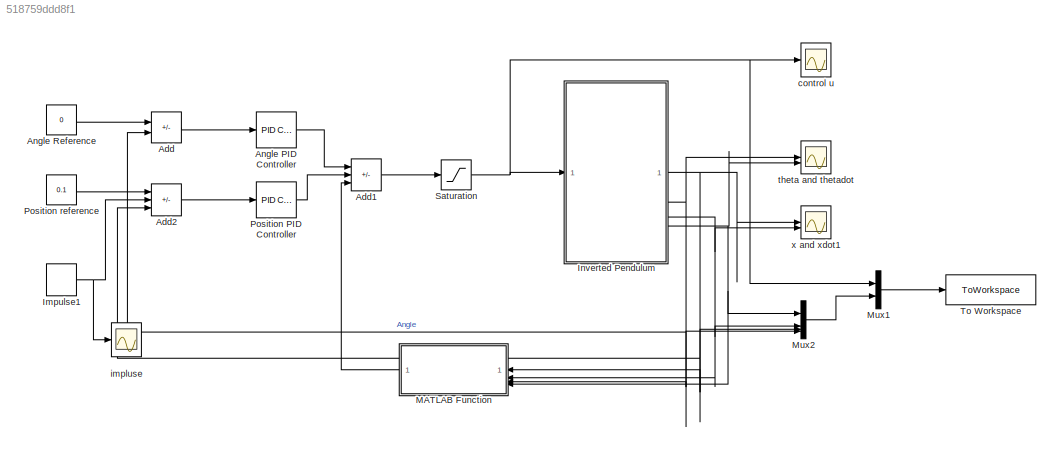
MODEL slx_518759ddd8f1
KIND model
CONFIG AbsTol = auto
CONFIG EnableMultiTasking = off
CONFIG FixedStep = auto
CONFIG MaxStep = auto
CONFIG MinStep = auto
CONFIG RelTol = 1e-3
CONFIG SampleTimeConstraint = Unconstrained
CONFIG SolverName = VariableStepAuto
CONFIG StartTime = 0.0
CONFIG StopTime = 50
BLOCK [Sum] Add
  IconShape = rectangular
  Inputs = +-
BLOCK [Sum] Add1
  IconShape = rectangular
  Inputs = ++-
BLOCK [Sum] Add2
  IconShape = rectangular
  Inputs = ++-
BLOCK [Reference] Angle PID Controller  REF=slpidlib/PID Controller
  SourceBlock = slpidlib/PID Controller
  SourceType = PID 1dof
BLOCK [Constant] Angle Reference
  Value = 0
BLOCK [DiscretePulseGenerator] Impulse1
  Amplitude = 1000
  Period = 10
  PulseType = Time based
  PulseWidth = 0.01
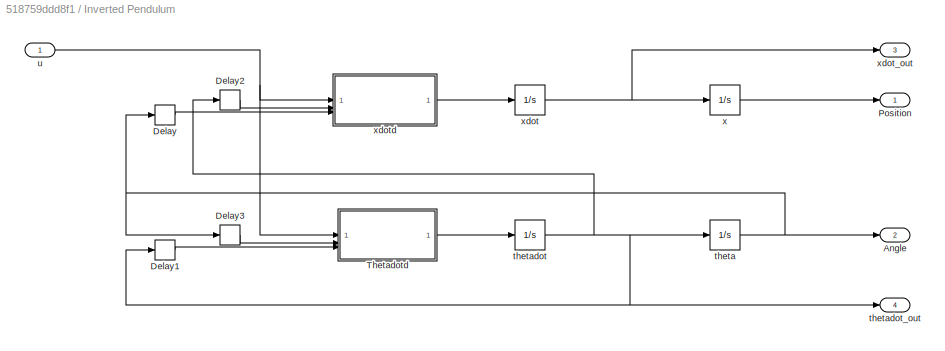
BLOCK [SubSystem] Inverted Pendulum
BLOCK [Outport] Inverted Pendulum/Angle
  Port = 2
BLOCK [Delay] Inverted Pendulum/Delay
  DelayLength = 1
  InitialCondition = 0
  InputPortMap = u0
BLOCK [Delay] Inverted Pendulum/Delay1
  DelayLength = 1
  InitialCondition = 0
  InputPortMap = u0
BLOCK [Delay] Inverted Pendulum/Delay2
  DelayLength = 1
  InitialCondition = 0
  InputPortMap = u0
BLOCK [Delay] Inverted Pendulum/Delay3
  DelayLength = 1
  InitialCondition = 0
  InputPortMap = u0
BLOCK [Outport] Inverted Pendulum/Position
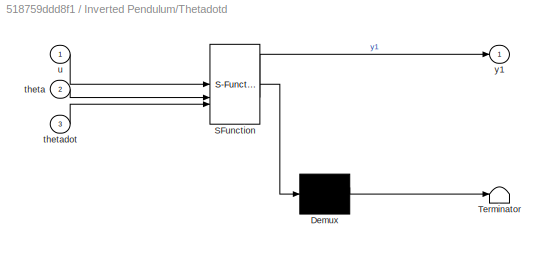
BLOCK [SubSystem] Inverted Pendulum/Thetadotd
  ErrorFcn = Stateflow.Translate.translate
  PermitHierarchicalResolution = ExplicitOnly
  SFBlockType = MATLAB Function
  TreatAsAtomicUnit = on
BLOCK [Demux] Inverted Pendulum/Thetadotd/ Demux 
  Outputs = 1
BLOCK [S-Function] Inverted Pendulum/Thetadotd/ SFunction 
  EnableBusSupport = on
  FunctionName = sf_sfun
  PortCounts = [3 2]
  SFcnIsStateOwnerBlock = off
  SFunctionDeploymentMode = off
  Tag = Stateflow S-Function 3
BLOCK [Terminator] Inverted Pendulum/Thetadotd/ Terminator 
BLOCK [Inport] Inverted Pendulum/Thetadotd/theta
  Port = 2
BLOCK [Inport] Inverted Pendulum/Thetadotd/thetadot
  Port = 3
BLOCK [Inport] Inverted Pendulum/Thetadotd/u
BLOCK [Outport] Inverted Pendulum/Thetadotd/y1
BLOCK [Integrator] Inverted Pendulum/theta
  ContinuousStateAttributes = 'theta'
BLOCK [Integrator] Inverted Pendulum/thetadot
  ContinuousStateAttributes = 'thetadot'
BLOCK [Outport] Inverted Pendulum/thetadot_out
  Port = 4
BLOCK [Inport] Inverted Pendulum/u
BLOCK [Integrator] Inverted Pendulum/x
  ContinuousStateAttributes = 'x'
BLOCK [Integrator] Inverted Pendulum/xdot
  ContinuousStateAttributes = 'xdot'
BLOCK [Outport] Inverted Pendulum/xdot_out
  Port = 3
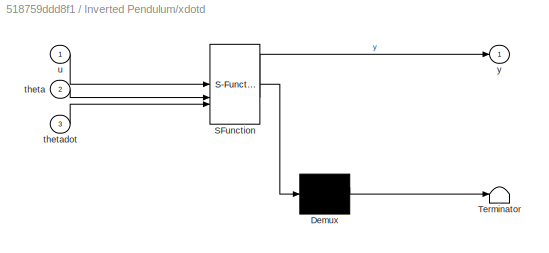
BLOCK [SubSystem] Inverted Pendulum/xdotd
  ErrorFcn = Stateflow.Translate.translate
  PermitHierarchicalResolution = ExplicitOnly
  SFBlockType = MATLAB Function
  TreatAsAtomicUnit = on
BLOCK [Demux] Inverted Pendulum/xdotd/ Demux 
  Outputs = 1
BLOCK [S-Function] Inverted Pendulum/xdotd/ SFunction 
  EnableBusSupport = on
  FunctionName = sf_sfun
  PortCounts = [3 2]
  SFcnIsStateOwnerBlock = off
  SFunctionDeploymentMode = off
  Tag = Stateflow S-Function 2
BLOCK [Terminator] Inverted Pendulum/xdotd/ Terminator 
BLOCK [Inport] Inverted Pendulum/xdotd/theta
  Port = 2
BLOCK [Inport] Inverted Pendulum/xdotd/thetadot
  Port = 3
BLOCK [Inport] Inverted Pendulum/xdotd/u
BLOCK [Outport] Inverted Pendulum/xdotd/y
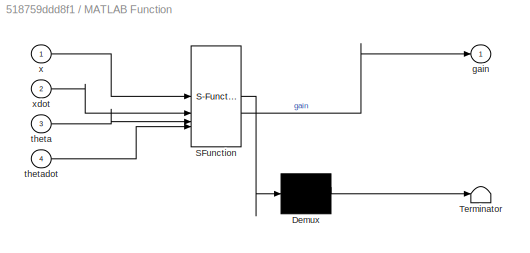
BLOCK [SubSystem] MATLAB Function
  ErrorFcn = Stateflow.Translate.translate
  LibrarySourceBlock = simulink/User-Defined\nFunctions/MATLAB Function
  PermitHierarchicalResolution = ExplicitOnly
  SFBlockType = MATLAB Function
  TreatAsAtomicUnit = on
BLOCK [Demux] MATLAB Function/ Demux 
  Outputs = 1
BLOCK [S-Function] MATLAB Function/ SFunction 
  EnableBusSupport = on
  FunctionName = sf_sfun
  PortCounts = [4 2]
  SFcnIsStateOwnerBlock = off
  SFunctionDeploymentMode = off
  Tag = Stateflow S-Function 1
BLOCK [Terminator] MATLAB Function/ Terminator 
BLOCK [Outport] MATLAB Function/gain
BLOCK [Inport] MATLAB Function/theta
  Port = 3
BLOCK [Inport] MATLAB Function/thetadot
  Port = 4
BLOCK [Inport] MATLAB Function/x
BLOCK [Inport] MATLAB Function/xdot
  Port = 2
BLOCK [Mux] Mux1
  DisplayOption = bar
  Inputs = 2
BLOCK [Mux] Mux2
  DisplayOption = bar
BLOCK [Reference] Position PID Controller  REF=slpidlib/PID Controller
  SourceBlock = slpidlib/PID Controller
  SourceType = PID 1dof
BLOCK [Constant] Position reference
  Value = 0.1
BLOCK [Saturate] Saturation
  LowerLimit = -0.1
  UpperLimit = 0.1
BLOCK [ToWorkspace] To Workspace
  FixptAsFi = on
  MaxDataPoints = inf
  SampleTime = -1
  SaveFormat = Timeseries
  VariableName = pid_lqr
BLOCK [Scope] control u
  Floating = off
  NumInputPorts = 1
  ScopeSpecificationString = Simulink.scopes.TimeScopeBlockCfg('CurrentConfiguration', extmgr.ConfigurationSet(extmgr.Configuration('Core','General UI',true),extmgr.Configuration('Core','Source UI',true),extmgr.Configuration('Sources','WiredSimulink',true,'DataLoggingVariableName','ScopeData2'),extmgr.Configuration('Visuals','Time Domain',true,'SerializedDisplays',{struct('MinYLimReal','-0.125','MaxYLimReal','0.125','YLabelRe...<+1390ch>
BLOCK [Scope] impluse
  Floating = off
  NumInputPorts = 1
  ScopeSpecificationString = Simulink.scopes.TimeScopeBlockCfg('CurrentConfiguration', extmgr.ConfigurationSet(extmgr.Configuration('Core','General UI',true),extmgr.Configuration('Core','Source UI',true),extmgr.Configuration('Sources','WiredSimulink',true,'DataLoggingVariableName','ScopeData1'),extmgr.Configuration('Visuals','Time Domain',true,'SerializedDisplays',{struct('MinYLimReal','-125.00000','MaxYLimReal','1125.00000',...<+1385ch>
BLOCK [Scope] theta and thetadot
  Floating = off
  NumInputPorts = 2
  ScopeSpecificationString = Simulink.scopes.TimeScopeBlockCfg('CurrentConfiguration', extmgr.ConfigurationSet(extmgr.Configuration('Core','General UI',true),extmgr.Configuration('Core','Source UI',true),extmgr.Configuration('Sources','WiredSimulink',true),extmgr.Configuration('Visuals','Time Domain',true,'SerializedDisplays',{struct('MinYLimReal','-6190.77895','MaxYLimReal','687.86433','YLabelReal','','MinYLimMag','  0.00000...<+1446ch>
BLOCK [Scope] x and xdot1
  Floating = off
  NumInputPorts = 2
  ScopeSpecificationString = Simulink.scopes.TimeScopeBlockCfg('CurrentConfiguration', extmgr.ConfigurationSet(extmgr.Configuration('Core','General UI',true),extmgr.Configuration('Core','Source UI',true),extmgr.Configuration('Sources','WiredSimulink',true,'DataLoggingVariableName','ScopeData1'),extmgr.Configuration('Visuals','Time Domain',true,'SerializedDisplays',{struct('MinYLimReal','-5355483.25509','MaxYLimReal','1373625....<+1479ch>
LINE Add1:1 -> Saturation:1
LINE Add2:1 -> Position PID Controller:1
LINE Add:1 -> Angle PID Controller:1
LINE Angle PID Controller:1 -> Add1:1
LINE Angle Reference:1 -> Add:1
NET Impulse1:1 -> Add2:2, impluse:1
LINE Inverted Pendulum/Delay1:1 -> Inverted Pendulum/Thetadotd:3
LINE Inverted Pendulum/Delay2:1 -> Inverted Pendulum/xdotd:2
LINE Inverted Pendulum/Delay3:1 -> Inverted Pendulum/Thetadotd:2
LINE Inverted Pendulum/Delay:1 -> Inverted Pendulum/xdotd:3
LINE Inverted Pendulum/Thetadotd:1 -> Inverted Pendulum/thetadot:1
NET Inverted Pendulum/theta:1 -> Inverted Pendulum/Angle:1, Inverted Pendulum/Delay3:1, Inverted Pendulum/Delay:1
NET Inverted Pendulum/thetadot:1 -> Inverted Pendulum/Delay1:1, Inverted Pendulum/Delay2:1, Inverted Pendulum/theta:1, Inverted Pendulum/thetadot_out:1
NET Inverted Pendulum/u:1 -> Inverted Pendulum/Thetadotd:1, Inverted Pendulum/xdotd:1
LINE Inverted Pendulum/x:1 -> Inverted Pendulum/Position:1
NET Inverted Pendulum/xdot:1 -> Inverted Pendulum/x:1, Inverted Pendulum/xdot_out:1
LINE Inverted Pendulum/xdotd:1 -> Inverted Pendulum/xdot:1
NET Inverted Pendulum:1 -> Add2:3, MATLAB Function:1, Mux2:3, x and xdot1:1
NET Inverted Pendulum:2 -> Add:2, MATLAB Function:3, Mux2:4, theta and thetadot:1
NET Inverted Pendulum:3 -> MATLAB Function:2, Mux2:2, x and xdot1:2
NET Inverted Pendulum:4 -> MATLAB Function:4, Mux2:1, theta and thetadot:2
LINE MATLAB Function:1 -> Add1:3
LINE Mux1:1 -> To Workspace:1
LINE Mux2:1 -> Mux1:2
LINE Position PID Controller:1 -> Add1:2
LINE Position reference:1 -> Add2:1
NET Saturation:1 -> Inverted Pendulum:1, Mux1:1, control u:1
note: NET lines group one-source signal fan-out (src -> all destinations, sorted); 1:1 wires keep LINE
CHART MATLAB Function states=1 transitions=1
  STATE_LABEL 'eML_blk_kernel()'
  STATE_LABEL "SCRIPT:\nfunction gain = LQR(x,xdot,theta,thetadot)\nu = [x xdot theta thetadot];\nK = [-137.7896 -25.9783 -22.3607 -27.5768];\ngain = K*u';\nend\n"
CHART Inverted Pendulum/xdotd states=1 transitions=1
  STATE_LABEL 'eML_blk_kernel()'
  STATE_LABEL 'SCRIPT:\nfunction y = fcn(u, theta, thetadot)\nM = 2.4; %Mass of cart\nm = 0.23; %Mass of pendulum\nl = 0.36; %Length of pendulum\ng = 9.8;\ny = (u + m*l*sin(theta)*thetadot*thetadot + m*g*cos(theta)*sin(theta))/(M+m-m*cos(theta)*cos(theta));'
CHART Inverted Pendulum/Thetadotd states=1 transitions=1
  STATE_LABEL 'eML_blk_kernel()'
  STATE_LABEL 'SCRIPT:\nfunction y1 = fcn(u, theta, thetadot)\n M = 2.4; %Mass of cart\nm = 0.23; %Mass of pendulum\nl = 0.36; %Length of pendulum\ng = 9.8;\ny1 = (u*cos(theta) - (M+m)*g*sin(theta) + m*l*cos(theta)*sin(theta)*thetadot)/(m*l*cos(theta)*cos(theta) - (M+m)*l);\n'
CHART  states=0 transitions=0
CHART  states=0 transitions=0
CHART  states=0 transitions=0
